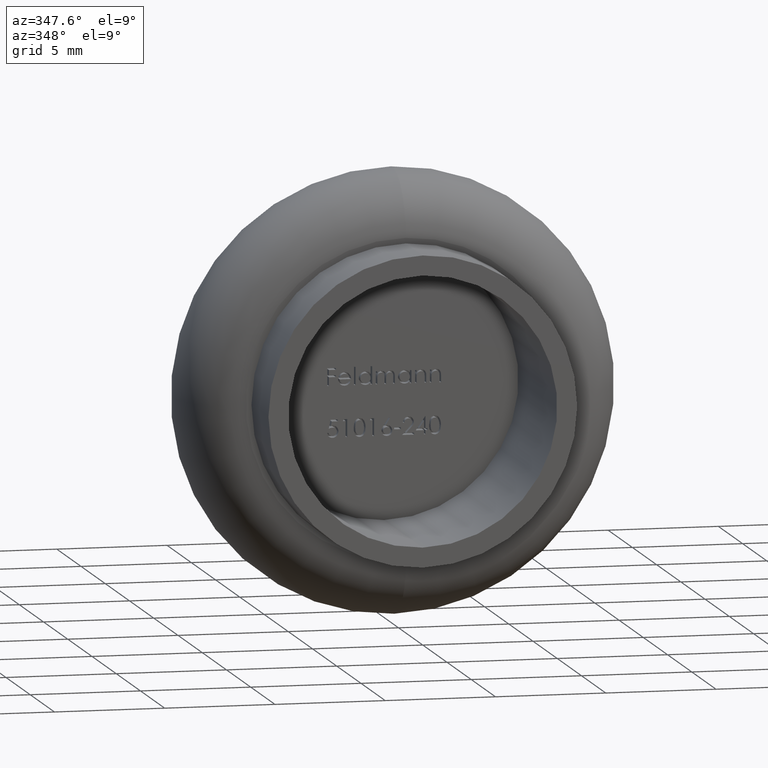
[diagram: clean part render]
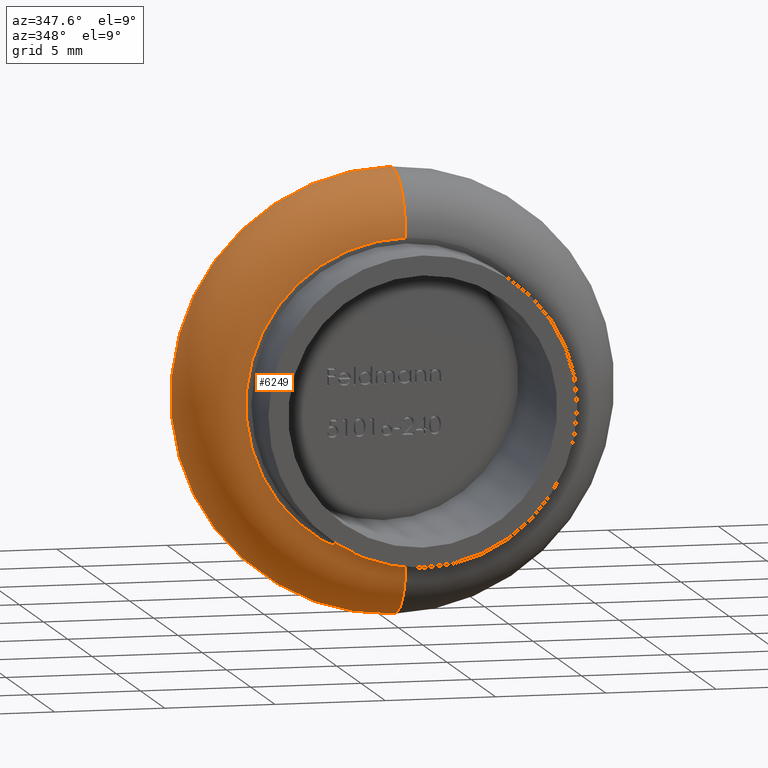
[diagram: same view with one face highlighted and labeled with its STEP entity id]
A machine part, auxiliary view. The second image highlights one B-rep face of the part: STEP entity #6249.
In plain terms, the highlighted toroidal blend (fillet) surface has major radius 7.25 mm and minor (blend) radius 2.75 mm.
Its self-contained STEP definition (entity closure, byte-faithful):
#533 = DIRECTION ( 'NONE',  ( -1.224646799147353000E-016, 0.0000000000000000000, -1.000000000000000000 ) ) ;
#701 = TOROIDAL_SURFACE ( 'NONE', #5062, 7.249999999999999100, 2.750000000000000900 ) ;
#1167 = AXIS2_PLACEMENT_3D ( 'NONE', #3570, #9991, #4501 ) ;
#1168 = ORIENTED_EDGE ( 'NONE', *, *, #10764, .F. ) ;
#1320 = CARTESIAN_POINT ( 'NONE',  ( 0.0000000000000000000, 6.249999999999975100, -7.249999999999999100 ) ) ;
#1745 = DIRECTION ( 'NONE',  ( 0.0000000000000000000, 0.0000000000000000000, -1.000000000000000000 ) ) ;
#1801 = ORIENTED_EDGE ( 'NONE', *, *, #9077, .T. ) ;
#1826 = DIRECTION ( 'NONE',  ( -0.0000000000000000000, -1.000000000000000000, -0.0000000000000000000 ) ) ;
#1864 = CARTESIAN_POINT ( 'NONE',  ( 0.0000000000000000000, 6.249999999999975100, 0.0000000000000000000 ) ) ;
#2248 = DIRECTION ( 'NONE',  ( 0.0000000000000000000, 0.0000000000000000000, 1.000000000000000000 ) ) ;
#2614 = CARTESIAN_POINT ( 'NONE',  ( 8.878689293818321900E-016, 8.999999999999976900, 7.250000000000009800 ) ) ;
#2781 = CIRCLE ( 'NONE', #9892, 2.750000000000000900 ) ;
#2842 = CARTESIAN_POINT ( 'NONE',  ( 0.0000000000000000000, 3.499999999999975100, 0.0000000000000000000 ) ) ;
#2922 = CARTESIAN_POINT ( 'NONE',  ( 8.878689293818316000E-016, 3.499999999999975100, 7.249999999999999100 ) ) ;
#3507 = AXIS2_PLACEMENT_3D ( 'NONE', #2842, #9319, #3788 ) ;
#3570 = CARTESIAN_POINT ( 'NONE',  ( 0.0000000000000000000, 8.999999999999976900, 0.0000000000000000000 ) ) ;
#3788 = DIRECTION ( 'NONE',  ( 0.0000000000000000000, 0.0000000000000000000, -1.000000000000000000 ) ) ;
#3794 = VERTEX_POINT ( 'NONE', #2614 ) ;
#4029 = EDGE_LOOP ( 'NONE', ( #1168, #4286, #1801, #9122 ) ) ;
#4063 = CIRCLE ( 'NONE', #4288, 2.750000000000000900 ) ;
#4286 = ORIENTED_EDGE ( 'NONE', *, *, #10606, .T. ) ;
#4288 = AXIS2_PLACEMENT_3D ( 'NONE', #11515, #6132, #533 ) ;
#4360 = VERTEX_POINT ( 'NONE', #8079 ) ;
#4501 = DIRECTION ( 'NONE',  ( 0.0000000000000000000, 0.0000000000000000000, -1.000000000000000000 ) ) ;
#4631 = VERTEX_POINT ( 'NONE', #5239 ) ;
#5062 = AXIS2_PLACEMENT_3D ( 'NONE', #1864, #1826, #1745 ) ;
#5239 = CARTESIAN_POINT ( 'NONE',  ( 0.0000000000000000000, 3.499999999999975100, -7.249999999999999100 ) ) ;
#6132 = DIRECTION ( 'NONE',  ( 1.000000000000000000, 0.0000000000000000000, -1.224646799147353200E-016 ) ) ;
#6249 = ADVANCED_FACE ( 'NONE', ( #8873 ), #701, .T. ) ;
#7831 = DIRECTION ( 'NONE',  ( -1.000000000000000000, 0.0000000000000000000, 0.0000000000000000000 ) ) ;
#8079 = CARTESIAN_POINT ( 'NONE',  ( 0.0000000000000000000, 8.999999999999976900, -7.250000000000008900 ) ) ;
#8873 = FACE_OUTER_BOUND ( 'NONE', #4029, .T. ) ;
#9077 = EDGE_CURVE ( 'NONE', #4360, #4631, #2781, .T. ) ;
#9122 = ORIENTED_EDGE ( 'NONE', *, *, #9366, .F. ) ;
#9319 = DIRECTION ( 'NONE',  ( -0.0000000000000000000, -1.000000000000000000, -0.0000000000000000000 ) ) ;
#9366 = EDGE_CURVE ( 'NONE', #9394, #4631, #10425, .T. ) ;
#9394 = VERTEX_POINT ( 'NONE', #2922 ) ;
#9692 = CIRCLE ( 'NONE', #1167, 7.250000000000008900 ) ;
#9892 = AXIS2_PLACEMENT_3D ( 'NONE', #1320, #7831, #2248 ) ;
#9991 = DIRECTION ( 'NONE',  ( -0.0000000000000000000, -1.000000000000000000, -0.0000000000000000000 ) ) ;
#10425 = CIRCLE ( 'NONE', #3507, 7.249999999999999100 ) ;
#10606 = EDGE_CURVE ( 'NONE', #3794, #4360, #9692, .T. ) ;
#10764 = EDGE_CURVE ( 'NONE', #3794, #9394, #4063, .T. ) ;
#11515 = CARTESIAN_POINT ( 'NONE',  ( 8.878689293818310100E-016, 6.249999999999975100, 7.249999999999999100 ) ) ;